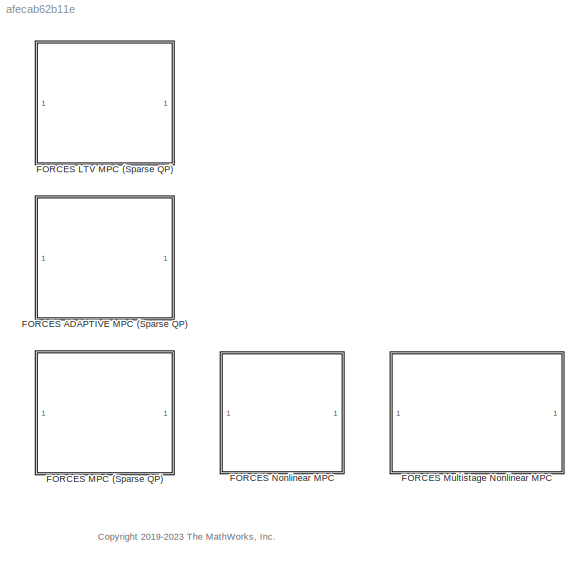
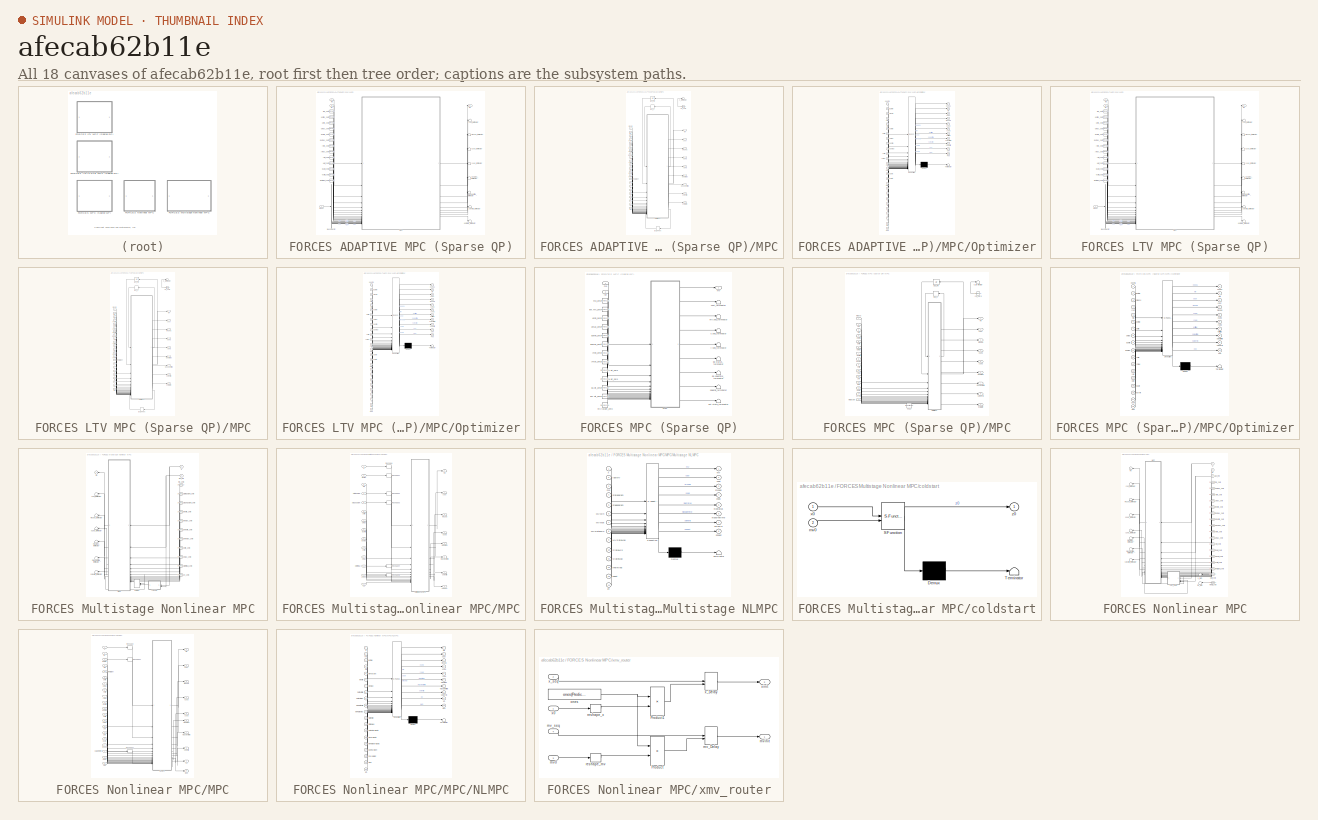
[diagram: thumbnail index - all 18 canvases of the model, root first then tree order]
MODEL slx_afecab62b11e
KIND library
CONFIG AbsTol = auto
CONFIG EnableMultiTasking = off
CONFIG FixedStep = auto
CONFIG MaxStep = auto
CONFIG MinStep = auto
CONFIG RelTol = 1e-3
CONFIG SampleTimeConstraint = Unconstrained
CONFIG SolverName = VariableStepAuto
CONFIG StartTime = 0.0
CONFIG StopTime = 10.0
BLOCK [SubSystem] FORCES ADAPTIVE MPC (Sparse QP)
  InitFcn = forcesmpcblock_InitFcn
BLOCK [BusSelector] FORCES ADAPTIVE MPC (Sparse QP)/Bus Selector
  OutputSignals = A,B,C,D,U,Y,X,DX
BLOCK [SubSystem] FORCES ADAPTIVE MPC (Sparse QP)/MPC
BLOCK [Inport] FORCES ADAPTIVE MPC (Sparse QP)/MPC/A
  Port = 16
BLOCK [Inport] FORCES ADAPTIVE MPC (Sparse QP)/MPC/B
  Port = 17
BLOCK [Inport] FORCES ADAPTIVE MPC (Sparse QP)/MPC/C
  Port = 18
BLOCK [Inport] FORCES ADAPTIVE MPC (Sparse QP)/MPC/D
  Port = 19
BLOCK [Inport] FORCES ADAPTIVE MPC (Sparse QP)/MPC/DX
  Port = 23
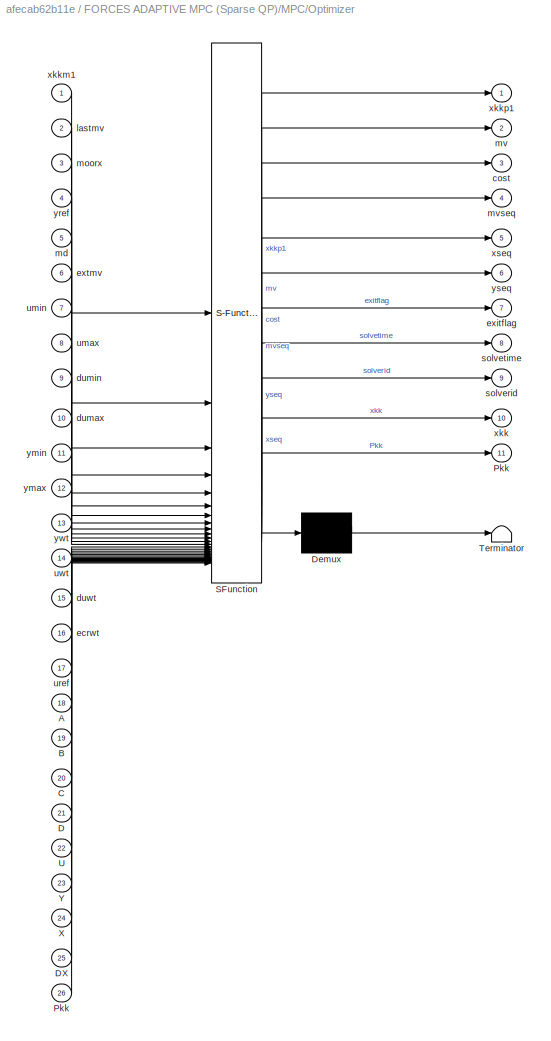
BLOCK [SubSystem] FORCES ADAPTIVE MPC (Sparse QP)/MPC/Optimizer
  ErrorFcn = Stateflow.Translate.translate
  PermitHierarchicalResolution = ExplicitOnly
  SFBlockType = MATLAB Function
  TreatAsAtomicUnit = on
BLOCK [Demux] FORCES ADAPTIVE MPC (Sparse QP)/MPC/Optimizer/ Demux 
  Outputs = 1
BLOCK [S-Function] FORCES ADAPTIVE MPC (Sparse QP)/MPC/Optimizer/ SFunction 
  EnableBusSupport = off
  FunctionName = sf_sfun
  Parameters = MPCstruct
  PortCounts = [26 12]
  SFcnIsStateOwnerBlock = off
  SFunctionDeploymentMode = off
  Tag = Stateflow S-Function 4
BLOCK [Terminator] FORCES ADAPTIVE MPC (Sparse QP)/MPC/Optimizer/ Terminator 
BLOCK [Inport] FORCES ADAPTIVE MPC (Sparse QP)/MPC/Optimizer/A
  Port = 18
BLOCK [Inport] FORCES ADAPTIVE MPC (Sparse QP)/MPC/Optimizer/B
  Port = 19
BLOCK [Inport] FORCES ADAPTIVE MPC (Sparse QP)/MPC/Optimizer/C
  Port = 20
BLOCK [Inport] FORCES ADAPTIVE MPC (Sparse QP)/MPC/Optimizer/D
  Port = 21
BLOCK [Inport] FORCES ADAPTIVE MPC (Sparse QP)/MPC/Optimizer/DX
  Port = 25
BLOCK [Outport] FORCES ADAPTIVE MPC (Sparse QP)/MPC/Optimizer/Pkk
  Port = 11
BLOCK [Inport] FORCES ADAPTIVE MPC (Sparse QP)/MPC/Optimizer/Pkk 
  Port = 26
BLOCK [Inport] FORCES ADAPTIVE MPC (Sparse QP)/MPC/Optimizer/U
  Port = 22
BLOCK [Inport] FORCES ADAPTIVE MPC (Sparse QP)/MPC/Optimizer/X
  Port = 24
BLOCK [Inport] FORCES ADAPTIVE MPC (Sparse QP)/MPC/Optimizer/Y
  Port = 23
BLOCK [Outport] FORCES ADAPTIVE MPC (Sparse QP)/MPC/Optimizer/cost
  Port = 3
BLOCK [Inport] FORCES ADAPTIVE MPC (Sparse QP)/MPC/Optimizer/dumax
  Port = 10
BLOCK [Inport] FORCES ADAPTIVE MPC (Sparse QP)/MPC/Optimizer/dumin
  Port = 9
BLOCK [Inport] FORCES ADAPTIVE MPC (Sparse QP)/MPC/Optimizer/duwt
  Port = 15
BLOCK [Inport] FORCES ADAPTIVE MPC (Sparse QP)/MPC/Optimizer/ecrwt
  Port = 16
BLOCK [Outport] FORCES ADAPTIVE MPC (Sparse QP)/MPC/Optimizer/exitflag
  Port = 7
BLOCK [Inport] FORCES ADAPTIVE MPC (Sparse QP)/MPC/Optimizer/extmv
  Port = 6
BLOCK [Inport] FORCES ADAPTIVE MPC (Sparse QP)/MPC/Optimizer/lastmv
  Port = 2
BLOCK [Inport] FORCES ADAPTIVE MPC (Sparse QP)/MPC/Optimizer/md
  Port = 5
BLOCK [Inport] FORCES ADAPTIVE MPC (Sparse QP)/MPC/Optimizer/moorx
  Port = 3
BLOCK [Outport] FORCES ADAPTIVE MPC (Sparse QP)/MPC/Optimizer/mv
  Port = 2
BLOCK [Outport] FORCES ADAPTIVE MPC (Sparse QP)/MPC/Optimizer/mvseq
  Port = 4
BLOCK [Outport] FORCES ADAPTIVE MPC (Sparse QP)/MPC/Optimizer/solverid
  Port = 9
BLOCK [Outport] FORCES ADAPTIVE MPC (Sparse QP)/MPC/Optimizer/solvetime
  Port = 8
BLOCK [Inport] FORCES ADAPTIVE MPC (Sparse QP)/MPC/Optimizer/umax
  Port = 8
BLOCK [Inport] FORCES ADAPTIVE MPC (Sparse QP)/MPC/Optimizer/umin
  Port = 7
BLOCK [Inport] FORCES ADAPTIVE MPC (Sparse QP)/MPC/Optimizer/uref
  Port = 17
BLOCK [Inport] FORCES ADAPTIVE MPC (Sparse QP)/MPC/Optimizer/uwt
  Port = 14
BLOCK [Outport] FORCES ADAPTIVE MPC (Sparse QP)/MPC/Optimizer/xkk
  Port = 10
BLOCK [Inport] FORCES ADAPTIVE MPC (Sparse QP)/MPC/Optimizer/xkkm1
BLOCK [Outport] FORCES ADAPTIVE MPC (Sparse QP)/MPC/Optimizer/xkkp1
BLOCK [Outport] FORCES ADAPTIVE MPC (Sparse QP)/MPC/Optimizer/xseq
  Port = 5
BLOCK [Inport] FORCES ADAPTIVE MPC (Sparse QP)/MPC/Optimizer/ymax
  Port = 12
BLOCK [Inport] FORCES ADAPTIVE MPC (Sparse QP)/MPC/Optimizer/ymin
  Port = 11
BLOCK [Inport] FORCES ADAPTIVE MPC (Sparse QP)/MPC/Optimizer/yref
  Port = 4
BLOCK [Outport] FORCES ADAPTIVE MPC (Sparse QP)/MPC/Optimizer/yseq
  Port = 6
BLOCK [Inport] FORCES ADAPTIVE MPC (Sparse QP)/MPC/Optimizer/ywt
  Port = 13
BLOCK [Inport] FORCES ADAPTIVE MPC (Sparse QP)/MPC/U
  Port = 20
BLOCK [Inport] FORCES ADAPTIVE MPC (Sparse QP)/MPC/X
  Port = 22
BLOCK [Inport] FORCES ADAPTIVE MPC (Sparse QP)/MPC/Y
  Port = 21
BLOCK [Outport] FORCES ADAPTIVE MPC (Sparse QP)/MPC/cost
  Port = 2
BLOCK [Inport] FORCES ADAPTIVE MPC (Sparse QP)/MPC/dumax
  Port = 8
BLOCK [Inport] FORCES ADAPTIVE MPC (Sparse QP)/MPC/dumin
  Port = 7
BLOCK [Inport] FORCES ADAPTIVE MPC (Sparse QP)/MPC/duwt
  Port = 13
BLOCK [Inport] FORCES ADAPTIVE MPC (Sparse QP)/MPC/ecrwt
  Port = 14
BLOCK [Outport] FORCES ADAPTIVE MPC (Sparse QP)/MPC/est.state
  Port = 9
BLOCK [Inport] FORCES ADAPTIVE MPC (Sparse QP)/MPC/ext.mv
  Port = 4
BLOCK [Memory] FORCES ADAPTIVE MPC (Sparse QP)/MPC/last_Pcov
  InheritSampleTime = on
  InitialCondition = MPCstruct.P0
  LinearizeAsDelay = on
BLOCK [UnitDelay] FORCES ADAPTIVE MPC (Sparse QP)/MPC/last_mv
  HasFrameUpgradeWarning = on
  InitialCondition = MPCstruct.MV0
  SampleTime = -1
BLOCK [Memory] FORCES ADAPTIVE MPC (Sparse QP)/MPC/last_x
  InheritSampleTime = on
  InitialCondition = MPCstruct.X0
  LinearizeAsDelay = on
BLOCK [Inport] FORCES ADAPTIVE MPC (Sparse QP)/MPC/md
  Port = 3
BLOCK [Inport] FORCES ADAPTIVE MPC (Sparse QP)/MPC/mo or x
BLOCK [Outport] FORCES ADAPTIVE MPC (Sparse QP)/MPC/mv
BLOCK [Outport] FORCES ADAPTIVE MPC (Sparse QP)/MPC/mv.seq
  Port = 3
BLOCK [Inport] FORCES ADAPTIVE MPC (Sparse QP)/MPC/mv.target
  Port = 15
BLOCK [Outport] FORCES ADAPTIVE MPC (Sparse QP)/MPC/qp.solvetime
  Port = 7
BLOCK [Outport] FORCES ADAPTIVE MPC (Sparse QP)/MPC/qp.status
  Port = 6
BLOCK [Inport] FORCES ADAPTIVE MPC (Sparse QP)/MPC/ref
  Port = 2
BLOCK [Outport] FORCES ADAPTIVE MPC (Sparse QP)/MPC/solverid
  Port = 8
BLOCK [Inport] FORCES ADAPTIVE MPC (Sparse QP)/MPC/umax
  Port = 6
BLOCK [Inport] FORCES ADAPTIVE MPC (Sparse QP)/MPC/umin
  Port = 5
BLOCK [Inport] FORCES ADAPTIVE MPC (Sparse QP)/MPC/uwt
  Port = 12
BLOCK [Outport] FORCES ADAPTIVE MPC (Sparse QP)/MPC/x.seq
  Port = 4
BLOCK [Terminator] FORCES ADAPTIVE MPC (Sparse QP)/MPC/x_terminator
BLOCK [Outport] FORCES ADAPTIVE MPC (Sparse QP)/MPC/y.seq
  Port = 5
BLOCK [Constant] FORCES ADAPTIVE MPC (Sparse QP)/MPC/ym_zero
  OutDataTypeStr = BlockDataType
  Value = zeros(1,1)
BLOCK [Inport] FORCES ADAPTIVE MPC (Sparse QP)/MPC/ymax
  Port = 10
BLOCK [Inport] FORCES ADAPTIVE MPC (Sparse QP)/MPC/ymin
  Port = 9
BLOCK [Inport] FORCES ADAPTIVE MPC (Sparse QP)/MPC/ywt
  Port = 11
BLOCK [Terminator] FORCES ADAPTIVE MPC (Sparse QP)/cost_terminator
BLOCK [Constant] FORCES ADAPTIVE MPC (Sparse QP)/du.wt_zero
  OutDataTypeStr = BlockDataType
  SampleTime = -1
  Value = zeros(1,1)
BLOCK [Constant] FORCES ADAPTIVE MPC (Sparse QP)/dumax_zero
  OutDataTypeStr = BlockDataType
  SampleTime = -1
  Value = zeros(1,1)
BLOCK [Constant] FORCES ADAPTIVE MPC (Sparse QP)/dumin_zero
  OutDataTypeStr = BlockDataType
  SampleTime = -1
  Value = zeros(1,1)
BLOCK [Constant] FORCES ADAPTIVE MPC (Sparse QP)/ecr.wt_zero
  OutDataTypeStr = BlockDataType
  SampleTime = -1
  Value = zeros(1,1)
BLOCK [Terminator] FORCES ADAPTIVE MPC (Sparse QP)/est.state_terminator
BLOCK [Constant] FORCES ADAPTIVE MPC (Sparse QP)/ext.mv_zero
  OutDataTypeStr = BlockDataType
  SampleTime = -1
  Value = zeros(1,1)
BLOCK [Constant] FORCES ADAPTIVE MPC (Sparse QP)/md_zero
  OutDataTypeStr = BlockDataType
  SampleTime = -1
  Value = zeros(1,1)
BLOCK [Inport] FORCES ADAPTIVE MPC (Sparse QP)/mo
  Port = 2
BLOCK [Inport] FORCES ADAPTIVE MPC (Sparse QP)/model
BLOCK [Outport] FORCES ADAPTIVE MPC (Sparse QP)/mv
BLOCK [Terminator] FORCES ADAPTIVE MPC (Sparse QP)/mv.seq_terminator
BLOCK [Constant] FORCES ADAPTIVE MPC (Sparse QP)/mv.target_zero
  OutDataTypeStr = BlockDataType
  SampleTime = -1
  Value = zeros(1,1)
BLOCK [Terminator] FORCES ADAPTIVE MPC (Sparse QP)/qp.solvetime_terminator
BLOCK [Terminator] FORCES ADAPTIVE MPC (Sparse QP)/qp.status_terminator
BLOCK [Inport] FORCES ADAPTIVE MPC (Sparse QP)/ref
  Port = 3
BLOCK [Terminator] FORCES ADAPTIVE MPC (Sparse QP)/solverid_terminator
BLOCK [Constant] FORCES ADAPTIVE MPC (Sparse QP)/u.wt_zero
  OutDataTypeStr = BlockDataType
  SampleTime = -1
  Value = zeros(1,1)
BLOCK [Constant] FORCES ADAPTIVE MPC (Sparse QP)/umax_zero
  OutDataTypeStr = BlockDataType
  SampleTime = -1
  Value = zeros(1,1)
BLOCK [Constant] FORCES ADAPTIVE MPC (Sparse QP)/umin_zero
  OutDataTypeStr = BlockDataType
  SampleTime = -1
  Value = zeros(1,1)
BLOCK [Terminator] FORCES ADAPTIVE MPC (Sparse QP)/x.seq_terminator
BLOCK [Terminator] FORCES ADAPTIVE MPC (Sparse QP)/y.seq_terminator
BLOCK [Constant] FORCES ADAPTIVE MPC (Sparse QP)/y.wt_zero
  OutDataTypeStr = BlockDataType
  SampleTime = -1
  Value = zeros(1,1)
BLOCK [Constant] FORCES ADAPTIVE MPC (Sparse QP)/ymax_zero
  OutDataTypeStr = BlockDataType
  SampleTime = -1
  Value = zeros(1,1)
BLOCK [Constant] FORCES ADAPTIVE MPC (Sparse QP)/ymin_zero
  OutDataTypeStr = BlockDataType
  SampleTime = -1
  Value = zeros(1,1)
BLOCK [SubSystem] FORCES LTV MPC (Sparse QP)
  InitFcn = forcesmpcblock_InitFcn
BLOCK [BusSelector] FORCES LTV MPC (Sparse QP)/Bus Selector
  OutputSignals = A,B,C,D,U,Y,X,DX
BLOCK [SubSystem] FORCES LTV MPC (Sparse QP)/MPC
BLOCK [Inport] FORCES LTV MPC (Sparse QP)/MPC/A
  Port = 16
BLOCK [Inport] FORCES LTV MPC (Sparse QP)/MPC/B
  Port = 17
BLOCK [Inport] FORCES LTV MPC (Sparse QP)/MPC/C
  Port = 18
BLOCK [Inport] FORCES LTV MPC (Sparse QP)/MPC/D
  Port = 19
BLOCK [Inport] FORCES LTV MPC (Sparse QP)/MPC/DX
  Port = 23
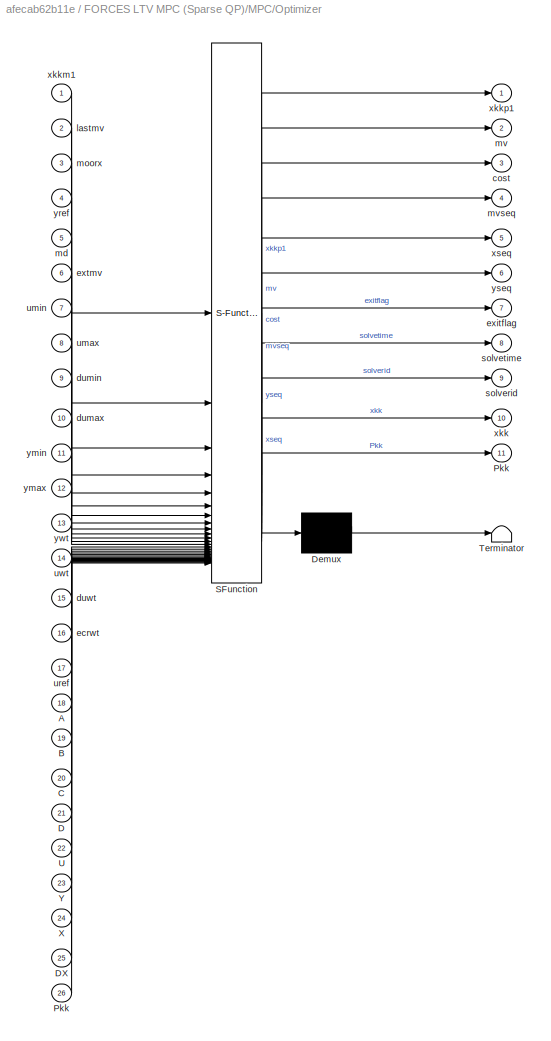
BLOCK [SubSystem] FORCES LTV MPC (Sparse QP)/MPC/Optimizer
  ErrorFcn = Stateflow.Translate.translate
  PermitHierarchicalResolution = ExplicitOnly
  SFBlockType = MATLAB Function
  TreatAsAtomicUnit = on
BLOCK [Demux] FORCES LTV MPC (Sparse QP)/MPC/Optimizer/ Demux 
  Outputs = 1
BLOCK [S-Function] FORCES LTV MPC (Sparse QP)/MPC/Optimizer/ SFunction 
  EnableBusSupport = off
  FunctionName = sf_sfun
  Parameters = MPCstruct
  PortCounts = [26 12]
  SFcnIsStateOwnerBlock = off
  SFunctionDeploymentMode = off
  Tag = Stateflow S-Function 5
BLOCK [Terminator] FORCES LTV MPC (Sparse QP)/MPC/Optimizer/ Terminator 
BLOCK [Inport] FORCES LTV MPC (Sparse QP)/MPC/Optimizer/A
  Port = 18
BLOCK [Inport] FORCES LTV MPC (Sparse QP)/MPC/Optimizer/B
  Port = 19
BLOCK [Inport] FORCES LTV MPC (Sparse QP)/MPC/Optimizer/C
  Port = 20
BLOCK [Inport] FORCES LTV MPC (Sparse QP)/MPC/Optimizer/D
  Port = 21
BLOCK [Inport] FORCES LTV MPC (Sparse QP)/MPC/Optimizer/DX
  Port = 25
BLOCK [Outport] FORCES LTV MPC (Sparse QP)/MPC/Optimizer/Pkk
  Port = 11
BLOCK [Inport] FORCES LTV MPC (Sparse QP)/MPC/Optimizer/Pkk 
  Port = 26
BLOCK [Inport] FORCES LTV MPC (Sparse QP)/MPC/Optimizer/U
  Port = 22
BLOCK [Inport] FORCES LTV MPC (Sparse QP)/MPC/Optimizer/X
  Port = 24
BLOCK [Inport] FORCES LTV MPC (Sparse QP)/MPC/Optimizer/Y
  Port = 23
BLOCK [Outport] FORCES LTV MPC (Sparse QP)/MPC/Optimizer/cost
  Port = 3
BLOCK [Inport] FORCES LTV MPC (Sparse QP)/MPC/Optimizer/dumax
  Port = 10
BLOCK [Inport] FORCES LTV MPC (Sparse QP)/MPC/Optimizer/dumin
  Port = 9
BLOCK [Inport] FORCES LTV MPC (Sparse QP)/MPC/Optimizer/duwt
  Port = 15
BLOCK [Inport] FORCES LTV MPC (Sparse QP)/MPC/Optimizer/ecrwt
  Port = 16
BLOCK [Outport] FORCES LTV MPC (Sparse QP)/MPC/Optimizer/exitflag
  Port = 7
BLOCK [Inport] FORCES LTV MPC (Sparse QP)/MPC/Optimizer/extmv
  Port = 6
BLOCK [Inport] FORCES LTV MPC (Sparse QP)/MPC/Optimizer/lastmv
  Port = 2
BLOCK [Inport] FORCES LTV MPC (Sparse QP)/MPC/Optimizer/md
  Port = 5
BLOCK [Inport] FORCES LTV MPC (Sparse QP)/MPC/Optimizer/moorx
  Port = 3
BLOCK [Outport] FORCES LTV MPC (Sparse QP)/MPC/Optimizer/mv
  Port = 2
BLOCK [Outport] FORCES LTV MPC (Sparse QP)/MPC/Optimizer/mvseq
  Port = 4
BLOCK [Outport] FORCES LTV MPC (Sparse QP)/MPC/Optimizer/solverid
  Port = 9
BLOCK [Outport] FORCES LTV MPC (Sparse QP)/MPC/Optimizer/solvetime
  Port = 8
BLOCK [Inport] FORCES LTV MPC (Sparse QP)/MPC/Optimizer/umax
  Port = 8
BLOCK [Inport] FORCES LTV MPC (Sparse QP)/MPC/Optimizer/umin
  Port = 7
BLOCK [Inport] FORCES LTV MPC (Sparse QP)/MPC/Optimizer/uref
  Port = 17
BLOCK [Inport] FORCES LTV MPC (Sparse QP)/MPC/Optimizer/uwt
  Port = 14
BLOCK [Outport] FORCES LTV MPC (Sparse QP)/MPC/Optimizer/xkk
  Port = 10
BLOCK [Inport] FORCES LTV MPC (Sparse QP)/MPC/Optimizer/xkkm1
BLOCK [Outport] FORCES LTV MPC (Sparse QP)/MPC/Optimizer/xkkp1
BLOCK [Outport] FORCES LTV MPC (Sparse QP)/MPC/Optimizer/xseq
  Port = 5
BLOCK [Inport] FORCES LTV MPC (Sparse QP)/MPC/Optimizer/ymax
  Port = 12
BLOCK [Inport] FORCES LTV MPC (Sparse QP)/MPC/Optimizer/ymin
  Port = 11
BLOCK [Inport] FORCES LTV MPC (Sparse QP)/MPC/Optimizer/yref
  Port = 4
BLOCK [Outport] FORCES LTV MPC (Sparse QP)/MPC/Optimizer/yseq
  Port = 6
BLOCK [Inport] FORCES LTV MPC (Sparse QP)/MPC/Optimizer/ywt
  Port = 13
BLOCK [Inport] FORCES LTV MPC (Sparse QP)/MPC/U
  Port = 20
BLOCK [Inport] FORCES LTV MPC (Sparse QP)/MPC/X
  Port = 22
BLOCK [Inport] FORCES LTV MPC (Sparse QP)/MPC/Y
  Port = 21
BLOCK [Outport] FORCES LTV MPC (Sparse QP)/MPC/cost
  Port = 2
BLOCK [Inport] FORCES LTV MPC (Sparse QP)/MPC/dumax
  Port = 8
BLOCK [Inport] FORCES LTV MPC (Sparse QP)/MPC/dumin
  Port = 7
BLOCK [Inport] FORCES LTV MPC (Sparse QP)/MPC/duwt
  Port = 13
BLOCK [Inport] FORCES LTV MPC (Sparse QP)/MPC/ecrwt
  Port = 14
BLOCK [Outport] FORCES LTV MPC (Sparse QP)/MPC/est.state
  Port = 9
BLOCK [Inport] FORCES LTV MPC (Sparse QP)/MPC/ext.mv
  Port = 4
BLOCK [Memory] FORCES LTV MPC (Sparse QP)/MPC/last_Pcov
  InheritSampleTime = on
  InitialCondition = MPCstruct.P0
  LinearizeAsDelay = on
BLOCK [UnitDelay] FORCES LTV MPC (Sparse QP)/MPC/last_mv
  HasFrameUpgradeWarning = on
  InitialCondition = MPCstruct.MV0
  SampleTime = -1
BLOCK [Memory] FORCES LTV MPC (Sparse QP)/MPC/last_x
  InheritSampleTime = on
  InitialCondition = MPCstruct.X0
  LinearizeAsDelay = on
BLOCK [Inport] FORCES LTV MPC (Sparse QP)/MPC/md
  Port = 3
BLOCK [Inport] FORCES LTV MPC (Sparse QP)/MPC/mo or x
BLOCK [Outport] FORCES LTV MPC (Sparse QP)/MPC/mv
BLOCK [Outport] FORCES LTV MPC (Sparse QP)/MPC/mv.seq
  Port = 3
BLOCK [Inport] FORCES LTV MPC (Sparse QP)/MPC/mv.target
  Port = 15
BLOCK [Outport] FORCES LTV MPC (Sparse QP)/MPC/qp.solvetime
  Port = 7
BLOCK [Outport] FORCES LTV MPC (Sparse QP)/MPC/qp.status
  Port = 6
BLOCK [Inport] FORCES LTV MPC (Sparse QP)/MPC/ref
  Port = 2
BLOCK [Outport] FORCES LTV MPC (Sparse QP)/MPC/solverid
  Port = 8
BLOCK [Inport] FORCES LTV MPC (Sparse QP)/MPC/umax
  Port = 6
BLOCK [Inport] FORCES LTV MPC (Sparse QP)/MPC/umin
  Port = 5
BLOCK [Inport] FORCES LTV MPC (Sparse QP)/MPC/uwt
  Port = 12
BLOCK [Outport] FORCES LTV MPC (Sparse QP)/MPC/x.seq
  Port = 4
BLOCK [Terminator] FORCES LTV MPC (Sparse QP)/MPC/x_terminator
BLOCK [Outport] FORCES LTV MPC (Sparse QP)/MPC/y.seq
  Port = 5
BLOCK [Constant] FORCES LTV MPC (Sparse QP)/MPC/ym_zero
  OutDataTypeStr = BlockDataType
  Value = zeros(1,1)
BLOCK [Inport] FORCES LTV MPC (Sparse QP)/MPC/ymax
  Port = 10
BLOCK [Inport] FORCES LTV MPC (Sparse QP)/MPC/ymin
  Port = 9
BLOCK [Inport] FORCES LTV MPC (Sparse QP)/MPC/ywt
  Port = 11
BLOCK [Terminator] FORCES LTV MPC (Sparse QP)/cost_terminator
BLOCK [Constant] FORCES LTV MPC (Sparse QP)/du.wt_zero
  OutDataTypeStr = BlockDataType
  SampleTime = -1
  Value = zeros(1,1)
BLOCK [Constant] FORCES LTV MPC (Sparse QP)/dumax_zero
  OutDataTypeStr = BlockDataType
  SampleTime = -1
  Value = zeros(1,1)
BLOCK [Constant] FORCES LTV MPC (Sparse QP)/dumin_zero
  OutDataTypeStr = BlockDataType
  SampleTime = -1
  Value = zeros(1,1)
BLOCK [Constant] FORCES LTV MPC (Sparse QP)/ecr.wt_zero
  OutDataTypeStr = BlockDataType
  SampleTime = -1
  Value = zeros(1,1)
BLOCK [Terminator] FORCES LTV MPC (Sparse QP)/est.state_terminator
BLOCK [Constant] FORCES LTV MPC (Sparse QP)/ext.mv_zero
  OutDataTypeStr = BlockDataType
  SampleTime = -1
  Value = zeros(1,1)
BLOCK [Constant] FORCES LTV MPC (Sparse QP)/md_zero
  OutDataTypeStr = BlockDataType
  SampleTime = -1
  Value = zeros(1,1)
BLOCK [Inport] FORCES LTV MPC (Sparse QP)/mo
  Port = 2
BLOCK [Inport] FORCES LTV MPC (Sparse QP)/model
BLOCK [Outport] FORCES LTV MPC (Sparse QP)/mv
BLOCK [Terminator] FORCES LTV MPC (Sparse QP)/mv.seq_terminator
BLOCK [Constant] FORCES LTV MPC (Sparse QP)/mv.target_zero
  OutDataTypeStr = BlockDataType
  SampleTime = -1
  Value = zeros(1,1)
BLOCK [Terminator] FORCES LTV MPC (Sparse QP)/qp.solvetime_terminator
BLOCK [Terminator] FORCES LTV MPC (Sparse QP)/qp.status_terminator
BLOCK [Inport] FORCES LTV MPC (Sparse QP)/ref
  Port = 3
BLOCK [Terminator] FORCES LTV MPC (Sparse QP)/solverid_terminator
BLOCK [Constant] FORCES LTV MPC (Sparse QP)/u.wt_zero
  OutDataTypeStr = BlockDataType
  SampleTime = -1
  Value = zeros(1,1)
BLOCK [Constant] FORCES LTV MPC (Sparse QP)/umax_zero
  OutDataTypeStr = BlockDataType
  SampleTime = -1
  Value = zeros(1,1)
BLOCK [Constant] FORCES LTV MPC (Sparse QP)/umin_zero
  OutDataTypeStr = BlockDataType
  SampleTime = -1
  Value = zeros(1,1)
BLOCK [Terminator] FORCES LTV MPC (Sparse QP)/x.seq_terminator
BLOCK [Terminator] FORCES LTV MPC (Sparse QP)/y.seq_terminator
BLOCK [Constant] FORCES LTV MPC (Sparse QP)/y.wt_zero
  OutDataTypeStr = BlockDataType
  SampleTime = -1
  Value = zeros(1,1)
BLOCK [Constant] FORCES LTV MPC (Sparse QP)/ymax_zero
  OutDataTypeStr = BlockDataType
  SampleTime = -1
  Value = zeros(1,1)
BLOCK [Constant] FORCES LTV MPC (Sparse QP)/ymin_zero
  OutDataTypeStr = BlockDataType
  SampleTime = -1
  Value = zeros(1,1)
BLOCK [SubSystem] FORCES MPC (Sparse QP)
  InitFcn = forcesmpcblock_InitFcn
BLOCK [SubSystem] FORCES MPC (Sparse QP)/MPC
BLOCK [SubSystem] FORCES MPC (Sparse QP)/MPC/Optimizer
  ErrorFcn = Stateflow.Translate.translate
  PermitHierarchicalResolution = ExplicitOnly
  SFBlockType = MATLAB Function
  TreatAsAtomicUnit = on
BLOCK [Demux] FORCES MPC (Sparse QP)/MPC/Optimizer/ Demux 
  Outputs = 1
BLOCK [S-Function] FORCES MPC (Sparse QP)/MPC/Optimizer/ SFunction 
  EnableBusSupport = off
  FunctionName = sf_sfun
  Parameters = MPCstruct
  PortCounts = [18 11]
  SFcnIsStateOwnerBlock = off
  SFunctionDeploymentMode = off
  Tag = Stateflow S-Function 2
BLOCK [Terminator] FORCES MPC (Sparse QP)/MPC/Optimizer/ Terminator 
BLOCK [Inport] FORCES MPC (Sparse QP)/MPC/Optimizer/Pkk
  Port = 18
BLOCK [Outport] FORCES MPC (Sparse QP)/MPC/Optimizer/cost
  Port = 3
BLOCK [Inport] FORCES MPC (Sparse QP)/MPC/Optimizer/dumax
  Port = 10
BLOCK [Inport] FORCES MPC (Sparse QP)/MPC/Optimizer/dumin
  Port = 9
BLOCK [Inport] FORCES MPC (Sparse QP)/MPC/Optimizer/duwt
  Port = 15
BLOCK [Inport] FORCES MPC (Sparse QP)/MPC/Optimizer/ecrwt
  Port = 16
BLOCK [Outport] FORCES MPC (Sparse QP)/MPC/Optimizer/exitflag
  Port = 7
BLOCK [Inport] FORCES MPC (Sparse QP)/MPC/Optimizer/extmv
  Port = 6
BLOCK [Inport] FORCES MPC (Sparse QP)/MPC/Optimizer/lastmv
  Port = 2
BLOCK [Inport] FORCES MPC (Sparse QP)/MPC/Optimizer/md
  Port = 5
BLOCK [Inport] FORCES MPC (Sparse QP)/MPC/Optimizer/moorx
  Port = 3
BLOCK [Outport] FORCES MPC (Sparse QP)/MPC/Optimizer/mv
  Port = 2
BLOCK [Outport] FORCES MPC (Sparse QP)/MPC/Optimizer/mvseq
  Port = 4
BLOCK [Outport] FORCES MPC (Sparse QP)/MPC/Optimizer/solverid
  Port = 9
BLOCK [Outport] FORCES MPC (Sparse QP)/MPC/Optimizer/solvetime
  Port = 8
BLOCK [Inport] FORCES MPC (Sparse QP)/MPC/Optimizer/umax
  Port = 8
BLOCK [Inport] FORCES MPC (Sparse QP)/MPC/Optimizer/umin
  Port = 7
BLOCK [Inport] FORCES MPC (Sparse QP)/MPC/Optimizer/uref
  Port = 17
BLOCK [Inport] FORCES MPC (Sparse QP)/MPC/Optimizer/uwt
  Port = 14
BLOCK [Outport] FORCES MPC (Sparse QP)/MPC/Optimizer/xkk
  Port = 10
BLOCK [Inport] FORCES MPC (Sparse QP)/MPC/Optimizer/xkkm1
BLOCK [Outport] FORCES MPC (Sparse QP)/MPC/Optimizer/xkkp1
BLOCK [Outport] FORCES MPC (Sparse QP)/MPC/Optimizer/xseq
  Port = 5
BLOCK [Inport] FORCES MPC (Sparse QP)/MPC/Optimizer/ymax
  Port = 12
BLOCK [Inport] FORCES MPC (Sparse QP)/MPC/Optimizer/ymin
  Port = 11
BLOCK [Inport] FORCES MPC (Sparse QP)/MPC/Optimizer/yref
  Port = 4
BLOCK [Outport] FORCES MPC (Sparse QP)/MPC/Optimizer/yseq
  Port = 6
BLOCK [Inport] FORCES MPC (Sparse QP)/MPC/Optimizer/ywt
  Port = 13
BLOCK [Constant] FORCES MPC (Sparse QP)/MPC/Pcov
  Value = MPCstruct.P0
BLOCK [Outport] FORCES MPC (Sparse QP)/MPC/cost
  Port = 2
BLOCK [Inport] FORCES MPC (Sparse QP)/MPC/dumax
  Port = 8
BLOCK [Inport] FORCES MPC (Sparse QP)/MPC/dumin
  Port = 7
BLOCK [Inport] FORCES MPC (Sparse QP)/MPC/duwt
  Port = 13
BLOCK [Inport] FORCES MPC (Sparse QP)/MPC/ecrwt
  Port = 14
BLOCK [Outport] FORCES MPC (Sparse QP)/MPC/est.state
  Port = 9
BLOCK [Inport] FORCES MPC (Sparse QP)/MPC/ext.mv
  Port = 4
BLOCK [UnitDelay] FORCES MPC (Sparse QP)/MPC/last_mv
  HasFrameUpgradeWarning = on
  InitialCondition = MPCstruct.MV0
  SampleTime = -1
BLOCK [Memory] FORCES MPC (Sparse QP)/MPC/last_x
  InheritSampleTime = on
  InitialCondition = MPCstruct.X0
  LinearizeAsDelay = on
BLOCK [Inport] FORCES MPC (Sparse QP)/MPC/md
  Port = 3
BLOCK [Inport] FORCES MPC (Sparse QP)/MPC/mo or x
BLOCK [Outport] FORCES MPC (Sparse QP)/MPC/mv
BLOCK [Outport] FORCES MPC (Sparse QP)/MPC/mv.seq
  Port = 3
BLOCK [Inport] FORCES MPC (Sparse QP)/MPC/mv.target
  Port = 15
BLOCK [Outport] FORCES MPC (Sparse QP)/MPC/qp.solvetime
  Port = 7
BLOCK [Outport] FORCES MPC (Sparse QP)/MPC/qp.status
  Port = 6
BLOCK [Inport] FORCES MPC (Sparse QP)/MPC/ref
  Port = 2
BLOCK [Outport] FORCES MPC (Sparse QP)/MPC/solverid
  Port = 8
BLOCK [Inport] FORCES MPC (Sparse QP)/MPC/umax
  Port = 6
BLOCK [Inport] FORCES MPC (Sparse QP)/MPC/umin
  Port = 5
BLOCK [Inport] FORCES MPC (Sparse QP)/MPC/uwt
  Port = 12
BLOCK [Outport] FORCES MPC (Sparse QP)/MPC/x.seq
  Port = 4
BLOCK [Terminator] FORCES MPC (Sparse QP)/MPC/x_terminator
BLOCK [Outport] FORCES MPC (Sparse QP)/MPC/y.seq
  Port = 5
BLOCK [Constant] FORCES MPC (Sparse QP)/MPC/ym_zero
  OutDataTypeStr = BlockDataType
  Value = zeros(1,1)
BLOCK [Inport] FORCES MPC (Sparse QP)/MPC/ymax
  Port = 10
BLOCK [Inport] FORCES MPC (Sparse QP)/MPC/ymin
  Port = 9
BLOCK [Inport] FORCES MPC (Sparse QP)/MPC/ywt
  Port = 11
BLOCK [Terminator] FORCES MPC (Sparse QP)/cost_terminator
BLOCK [Constant] FORCES MPC (Sparse QP)/du.wt_zero
  OutDataTypeStr = BlockDataType
  SampleTime = -1
  Value = zeros(1,1)
BLOCK [Constant] FORCES MPC (Sparse QP)/dumax_zero
  OutDataTypeStr = BlockDataType
  SampleTime = -1
  Value = zeros(1,1)
BLOCK [Constant] FORCES MPC (Sparse QP)/dumin_zero
  OutDataTypeStr = BlockDataType
  SampleTime = -1
  Value = zeros(1,1)
BLOCK [Constant] FORCES MPC (Sparse QP)/ecr.wt_zero
  OutDataTypeStr = BlockDataType
  SampleTime = -1
  Value = zeros(1,1)
BLOCK [Terminator] FORCES MPC (Sparse QP)/est.state_terminator
BLOCK [Constant] FORCES MPC (Sparse QP)/ext.mv_zero
  OutDataTypeStr = BlockDataType
  SampleTime = -1
  Value = zeros(1,1)
BLOCK [Constant] FORCES MPC (Sparse QP)/md_zero
  OutDataTypeStr = BlockDataType
  SampleTime = -1
  Value = zeros(1,1)
BLOCK [Inport] FORCES MPC (Sparse QP)/mo
BLOCK [Outport] FORCES MPC (Sparse QP)/mv
BLOCK [Terminator] FORCES MPC (Sparse QP)/mv.seq_terminator
BLOCK [Constant] FORCES MPC (Sparse QP)/mv.target_zero
  OutDataTypeStr = BlockDataType
  SampleTime = -1
  Value = zeros(1,1)
BLOCK [Terminator] FORCES MPC (Sparse QP)/qp.solvetime_terminator
BLOCK [Terminator] FORCES MPC (Sparse QP)/qp.status_terminator
BLOCK [Inport] FORCES MPC (Sparse QP)/ref
  Port = 2
BLOCK [Terminator] FORCES MPC (Sparse QP)/solverid_terminator
BLOCK [Constant] FORCES MPC (Sparse QP)/u.wt_zero
  OutDataTypeStr = BlockDataType
  SampleTime = -1
  Value = zeros(1,1)
BLOCK [Constant] FORCES MPC (Sparse QP)/umax_zero
  OutDataTypeStr = BlockDataType
  SampleTime = -1
  Value = zeros(1,1)
BLOCK [Constant] FORCES MPC (Sparse QP)/umin_zero
  OutDataTypeStr = BlockDataType
  SampleTime = -1
  Value = zeros(1,1)
BLOCK [Terminator] FORCES MPC (Sparse QP)/x.seq_terminator
BLOCK [Terminator] FORCES MPC (Sparse QP)/y.seq_terminator
BLOCK [Constant] FORCES MPC (Sparse QP)/y.wt_zero
  OutDataTypeStr = BlockDataType
  SampleTime = -1
  Value = zeros(1,1)
BLOCK [Constant] FORCES MPC (Sparse QP)/ymax_zero
  OutDataTypeStr = BlockDataType
  SampleTime = -1
  Value = zeros(1,1)
BLOCK [Constant] FORCES MPC (Sparse QP)/ymin_zero
  OutDataTypeStr = BlockDataType
  SampleTime = -1
  Value = zeros(1,1)
BLOCK [SubSystem] FORCES Multistage Nonlinear MPC
  InitFcn = forcesnlmpcblockMultistage_InitFcn;
  SCDEnableBlockLinearizationSpecification = on
BLOCK [SubSystem] FORCES Multistage Nonlinear MPC/MPC
BLOCK [SubSystem] FORCES Multistage Nonlinear MPC/MPC/Multistage NLMPC
  ErrorFcn = Stateflow.Translate.translate
  PermitHierarchicalResolution = ExplicitOnly
  SFBlockType = MATLAB Function
  TreatAsAtomicUnit = on
BLOCK [Demux] FORCES Multistage Nonlinear MPC/MPC/Multistage NLMPC/ Demux 
  Outputs = 1
BLOCK [S-Function] FORCES Multistage Nonlinear MPC/MPC/Multistage NLMPC/ SFunction 
  EnableBusSupport = off
  FunctionName = sf_sfun
  Parameters = blkData
  PortCounts = [14 9]
  SFcnIsStateOwnerBlock = off
  SFunctionDeploymentMode = off
  Tag = Stateflow S-Function 1
BLOCK [Terminator] FORCES Multistage Nonlinear MPC/MPC/Multistage NLMPC/ Terminator 
BLOCK [Inport] FORCES Multistage Nonlinear MPC/MPC/Multistage NLMPC/MVMax
  Port = 7
BLOCK [Inport] FORCES Multistage Nonlinear MPC/MPC/Multistage NLMPC/MVMin
  Port = 6
BLOCK [Inport] FORCES Multistage Nonlinear MPC/MPC/Multistage NLMPC/MVRateMax
  Port = 9
BLOCK [Inport] FORCES Multistage Nonlinear MPC/MPC/Multistage NLMPC/MVRateMin
  Port = 8
BLOCK [Inport] FORCES Multistage Nonlinear MPC/MPC/Multistage NLMPC/StateMax
  Port = 11
BLOCK [Inport] FORCES Multistage Nonlinear MPC/MPC/Multistage NLMPC/StateMin
  Port = 10
BLOCK [Outport] FORCES Multistage Nonlinear MPC/MPC/Multistage NLMPC/cost
  Port = 2
  VectorParamsAs1DForOutWhenUnconnected = off
BLOCK [Inport] FORCES Multistage Nonlinear MPC/MPC/Multistage NLMPC/lastMV
  Port = 2
BLOCK [Inport] FORCES Multistage Nonlinear MPC/MPC/Multistage NLMPC/md
  Port = 3
BLOCK [Outport] FORCES Multistage Nonlinear MPC/MPC/Multistage NLMPC/mv
  VectorParamsAs1DForOutWhenUnconnected = off
BLOCK [Outport] FORCES Multistage Nonlinear MPC/MPC/Multistage NLMPC/mvseq
  Port = 3
  VectorParamsAs1DForOutWhenUnconnected = off
BLOCK [Outport] FORCES Multistage Nonlinear MPC/MPC/Multistage NLMPC/nlpsolvetime
  Port = 6
BLOCK [Outport] FORCES Multistage Nonlinear MPC/MPC/Multistage NLMPC/nlpstatus
  Port = 5
  VectorParamsAs1DForOutWhenUnconnected = off
BLOCK [Outport] FORCES Multistage Nonlinear MPC/MPC/Multistage NLMPC/solverid
  Port = 7
BLOCK [Inport] FORCES Multistage Nonlinear MPC/MPC/Multistage NLMPC/stageparam
  Port = 5
BLOCK [Inport] FORCES Multistage Nonlinear MPC/MPC/Multistage NLMPC/stateparam
  Port = 4
BLOCK [Inport] FORCES Multistage Nonlinear MPC/MPC/Multistage NLMPC/x
BLOCK [Inport] FORCES Multistage Nonlinear MPC/MPC/Multistage NLMPC/xTerminal
  Port = 12
BLOCK [Outport] FORCES Multistage Nonlinear MPC/MPC/Multistage NLMPC/xseq
  Port = 4
  VectorParamsAs1DForOutWhenUnconnected = off
BLOCK [Inport] FORCES Multistage Nonlinear MPC/MPC/Multistage NLMPC/z0
  Port = 14
BLOCK [Inport] FORCES Multistage Nonlinear MPC/MPC/Multistage NLMPC/z0ext
  Port = 13
BLOCK [Outport] FORCES Multistage Nonlinear MPC/MPC/Multistage NLMPC/z0next
  Port = 8
  VectorParamsAs1DForOutWhenUnconnected = off
BLOCK [Reshape] FORCES Multistage Nonlinear MPC/MPC/Reshape
  OutputDimensionality = Column vector (2-D)
BLOCK [Reshape] FORCES Multistage Nonlinear MPC/MPC/Reshape1
  OutputDimensionality = Column vector (2-D)
BLOCK [Reshape] FORCES Multistage Nonlinear MPC/MPC/Reshape2
  OutputDimensionality = Column vector (2-D)
BLOCK [Reshape] FORCES Multistage Nonlinear MPC/MPC/Reshape3
  OutputDimensionality = Column vector (2-D)
BLOCK [Reshape] FORCES Multistage Nonlinear MPC/MPC/Reshape4
  OutputDimensionality = Column vector (2-D)
BLOCK [Reshape] FORCES Multistage Nonlinear MPC/MPC/Reshape6
  OutputDimensionality = Column vector (2-D)
BLOCK [Outport] FORCES Multistage Nonlinear MPC/MPC/cost
  Port = 2
  VectorParamsAs1DForOutWhenUnconnected = off
BLOCK [Inport] FORCES Multistage Nonlinear MPC/MPC/dumax
  Port = 9
BLOCK [Inport] FORCES Multistage Nonlinear MPC/MPC/dumin
  Port = 8
BLOCK [Inport] FORCES Multistage Nonlinear MPC/MPC/lastMV
  Port = 2
BLOCK [Inport] FORCES Multistage Nonlinear MPC/MPC/md
  Port = 3
BLOCK [Outport] FORCES Multistage Nonlinear MPC/MPC/mv
  VectorParamsAs1DForOutWhenUnconnected = off
BLOCK [Outport] FORCES Multistage Nonlinear MPC/MPC/mv.seq
  Port = 3
  VectorParamsAs1DForOutWhenUnconnected = off
BLOCK [Outport] FORCES Multistage Nonlinear MPC/MPC/nlp.solvetime
  Port = 6
  VectorParamsAs1DForOutWhenUnconnected = off
BLOCK [Outport] FORCES Multistage Nonlinear MPC/MPC/nlp.status
  Port = 5
  VectorParamsAs1DForOutWhenUnconnected = off
BLOCK [Outport] FORCES Multistage Nonlinear MPC/MPC/solverid
  Port = 7
  VectorParamsAs1DForOutWhenUnconnected = off
BLOCK [Inport] FORCES Multistage Nonlinear MPC/MPC/stageparam
  Port = 5
BLOCK [Inport] FORCES Multistage Nonlinear MPC/MPC/stateparam
  Port = 4
BLOCK [Inport] FORCES Multistage Nonlinear MPC/MPC/umax
  Port = 7
BLOCK [Inport] FORCES Multistage Nonlinear MPC/MPC/umin
  Port = 6
BLOCK [Inport] FORCES Multistage Nonlinear MPC/MPC/x
BLOCK [Outport] FORCES Multistage Nonlinear MPC/MPC/x.seq
  Port = 4
  VectorParamsAs1DForOutWhenUnconnected = off
BLOCK [Inport] FORCES Multistage Nonlinear MPC/MPC/xmax
  Port = 11
BLOCK [Inport] FORCES Multistage Nonlinear MPC/MPC/xmin
  Port = 10
BLOCK [Inport] FORCES Multistage Nonlinear MPC/MPC/xterminal
  Port = 12
BLOCK [Inport] FORCES Multistage Nonlinear MPC/MPC/z0
  Port = 14
BLOCK [Inport] FORCES Multistage Nonlinear MPC/MPC/z0ext
  Port = 13
BLOCK [Outport] FORCES Multistage Nonlinear MPC/MPC/z0next
  Port = 8
  VectorParamsAs1DForOutWhenUnconnected = off
BLOCK [SubSystem] FORCES Multistage Nonlinear MPC/coldstart
  ErrorFcn = Stateflow.Translate.translate
  PermitHierarchicalResolution = ExplicitOnly
  SFBlockType = MATLAB Function
  TreatAsAtomicUnit = on
BLOCK [Demux] FORCES Multistage Nonlinear MPC/coldstart/ Demux 
  Outputs = 1
BLOCK [S-Function] FORCES Multistage Nonlinear MPC/coldstart/ SFunction 
  EnableBusSupport = off
  FunctionName = sf_sfun
  Parameters = blkData
  PortCounts = [2 2]
  SFcnIsStateOwnerBlock = off
  SFunctionDeploymentMode = off
  Tag = Stateflow S-Function 3
BLOCK [Terminator] FORCES Multistage Nonlinear MPC/coldstart/ Terminator 
BLOCK [Inport] FORCES Multistage Nonlinear MPC/coldstart/mv0
  Port = 2
BLOCK [Inport] FORCES Multistage Nonlinear MPC/coldstart/x0
BLOCK [Outport] FORCES Multistage Nonlinear MPC/coldstart/z0
BLOCK [Terminator] FORCES Multistage Nonlinear MPC/cost_terminator
BLOCK [Constant] FORCES Multistage Nonlinear MPC/dmv.max_zero
  OutDataTypeStr = BlockDataType
  Value = zeros(1,1)
BLOCK [Constant] FORCES Multistage Nonlinear MPC/dmv.min_zero
  OutDataTypeStr = BlockDataType
  Value = zeros(1,1)
BLOCK [Inport] FORCES Multistage Nonlinear MPC/last_mv
  OutDataTypeStr = BlockDataType
  Port = 2
BLOCK [Constant] FORCES Multistage Nonlinear MPC/md_zero
  OutDataTypeStr = BlockDataType
  Value = zeros(1,1)
BLOCK [Outport] FORCES Multistage Nonlinear MPC/mv
  VectorParamsAs1DForOutWhenUnconnected = off
BLOCK [Constant] FORCES Multistage Nonlinear MPC/mv.max_zero
  OutDataTypeStr = BlockDataType
  Value = zeros(1,1)
BLOCK [Constant] FORCES Multistage Nonlinear MPC/mv.min_zero
  OutDataTypeStr = BlockDataType
  Value = zeros(1,1)
BLOCK [Terminator] FORCES Multistage Nonlinear MPC/mv.seq_terminator
BLOCK [Terminator] FORCES Multistage Nonlinear MPC/nlp.solvetime_terminator
BLOCK [Terminator] FORCES Multistage Nonlinear MPC/nlp.status_terminator
BLOCK [Terminator] FORCES Multistage Nonlinear MPC/solverid_terminator
BLOCK [Constant] FORCES Multistage Nonlinear MPC/stage.param_zero
  OutDataTypeStr = BlockDataType
  Value = zeros(1,1)
BLOCK [Constant] FORCES Multistage Nonlinear MPC/state.param_zero
  OutDataTypeStr = BlockDataType
  Value = zeros(1,1)
BLOCK [Inport] FORCES Multistage Nonlinear MPC/x
  OutDataTypeStr = BlockDataType
BLOCK [Constant] FORCES Multistage Nonlinear MPC/x.max_zero
  OutDataTypeStr = BlockDataType
  Value = zeros(1,1)
BLOCK [Constant] FORCES Multistage Nonlinear MPC/x.min_zero
  OutDataTypeStr = BlockDataType
  Value = zeros(1,1)
BLOCK [Terminator] FORCES Multistage Nonlinear MPC/x.seq_terminator
BLOCK [Constant] FORCES Multistage Nonlinear MPC/x.terminal_zero
  OutDataTypeStr = BlockDataType
  Value = zeros(1,1)
BLOCK [Constant] FORCES Multistage Nonlinear MPC/z0_zero
  OutDataTypeStr = BlockDataType
  Value = zeros(1,1)
BLOCK [Delay] FORCES Multistage Nonlinear MPC/zDelay
  DelayLength = 1
  InitialConditionSource = Input port
  InputPortMap = u0,p4
  SampleTime = blkData.Ts
BLOCK [SubSystem] FORCES Nonlinear MPC
  InitFcn = forcesnlmpcblock_InitFcn;
  SCDEnableBlockLinearizationSpecification = on
BLOCK [SubSystem] FORCES Nonlinear MPC/MPC
BLOCK [Outport] FORCES Nonlinear MPC/MPC/MV0
  Port = 10
  VectorParamsAs1DForOutWhenUnconnected = off
BLOCK [SubSystem] FORCES Nonlinear MPC/MPC/NLMPC
  ErrorFcn = Stateflow.Translate.translate
  PermitHierarchicalResolution = ExplicitOnly
  SFBlockType = MATLAB Function
  TreatAsAtomicUnit = on
BLOCK [Demux] FORCES Nonlinear MPC/MPC/NLMPC/ Demux 
  Outputs = 1
BLOCK [S-Function] FORCES Nonlinear MPC/MPC/NLMPC/ SFunction 
  EnableBusSupport = off
  FunctionName = sf_sfun
  Parameters = blkData
  PortCounts = [20 11]
  SFcnIsStateOwnerBlock = off
  SFunctionDeploymentMode = off
  Tag = Stateflow S-Function 7
BLOCK [Terminator] FORCES Nonlinear MPC/MPC/NLMPC/ Terminator 
BLOCK [Inport] FORCES Nonlinear MPC/MPC/NLMPC/ECRWeight
  Port = 17
BLOCK [Outport] FORCES Nonlinear MPC/MPC/NLMPC/MV0
  Port = 10
BLOCK [Inport] FORCES Nonlinear MPC/MPC/NLMPC/MV0 
  Port = 19
BLOCK [Inport] FORCES Nonlinear MPC/MPC/NLMPC/MVMax
  Port = 7
BLOCK [Inport] FORCES Nonlinear MPC/MPC/NLMPC/MVMin
  Port = 6
BLOCK [Inport] FORCES Nonlinear MPC/MPC/NLMPC/MVRateMax
  Port = 11
BLOCK [Inport] FORCES Nonlinear MPC/MPC/NLMPC/MVRateMin
  Port = 10
BLOCK [Inport] FORCES Nonlinear MPC/MPC/NLMPC/MVRateWeights
  Port = 16
BLOCK [Inport] FORCES Nonlinear MPC/MPC/NLMPC/MVTarget
  Port = 5
BLOCK [Inport] FORCES Nonlinear MPC/MPC/NLMPC/MVWeights
  Port = 15
BLOCK [Inport] FORCES Nonlinear MPC/MPC/NLMPC/OutputMax
  Port = 9
BLOCK [Inport] FORCES Nonlinear MPC/MPC/NLMPC/OutputMin
  Port = 8
BLOCK [Inport] FORCES Nonlinear MPC/MPC/NLMPC/OutputWeights
  Port = 14
BLOCK [Inport] FORCES Nonlinear MPC/MPC/NLMPC/Parameter
  Port = 18
BLOCK [Inport] FORCES Nonlinear MPC/MPC/NLMPC/StateMax
  Port = 13
BLOCK [Inport] FORCES Nonlinear MPC/MPC/NLMPC/StateMin
  Port = 12
BLOCK [Outport] FORCES Nonlinear MPC/MPC/NLMPC/X0
  Port = 9
BLOCK [Inport] FORCES Nonlinear MPC/MPC/NLMPC/X0 
  Port = 20
BLOCK [Outport] FORCES Nonlinear MPC/MPC/NLMPC/cost
  Port = 2
  VectorParamsAs1DForOutWhenUnconnected = off
BLOCK [Inport] FORCES Nonlinear MPC/MPC/NLMPC/lastMV
  Port = 3
BLOCK [Inport] FORCES Nonlinear MPC/MPC/NLMPC/md
  Port = 4
BLOCK [Outport] FORCES Nonlinear MPC/MPC/NLMPC/mv
  VectorParamsAs1DForOutWhenUnconnected = off
BLOCK [Outport] FORCES Nonlinear MPC/MPC/NLMPC/mvseq
  Port = 3
  VectorParamsAs1DForOutWhenUnconnected = off
BLOCK [Outport] FORCES Nonlinear MPC/MPC/NLMPC/nlpsolvetime
  Port = 7
BLOCK [Outport] FORCES Nonlinear MPC/MPC/NLMPC/nlpstatus
  Port = 6
  VectorParamsAs1DForOutWhenUnconnected = off
BLOCK [Inport] FORCES Nonlinear MPC/MPC/NLMPC/ref
  Port = 2
BLOCK [Outport] FORCES Nonlinear MPC/MPC/NLMPC/solverid
  Port = 8
BLOCK [Inport] FORCES Nonlinear MPC/MPC/NLMPC/x
BLOCK [Outport] FORCES Nonlinear MPC/MPC/NLMPC/xseq
  Port = 4
  VectorParamsAs1DForOutWhenUnconnected = off
BLOCK [Outport] FORCES Nonlinear MPC/MPC/NLMPC/yseq
  Port = 5
  VectorParamsAs1DForOutWhenUnconnected = off
BLOCK [Reshape] FORCES Nonlinear MPC/MPC/Reshape
  OutputDimensionality = Column vector (2-D)
BLOCK [Reshape] FORCES Nonlinear MPC/MPC/Reshape1
  OutputDimensionality = Column vector (2-D)
BLOCK [Reshape] FORCES Nonlinear MPC/MPC/Reshape2
  OutputDimensionality = Column vector (2-D)
BLOCK [Outport] FORCES Nonlinear MPC/MPC/X0
  Port = 9
  VectorParamsAs1DForOutWhenUnconnected = off
BLOCK [Outport] FORCES Nonlinear MPC/MPC/cost
  Port = 2
  VectorParamsAs1DForOutWhenUnconnected = off
BLOCK [Inport] FORCES Nonlinear MPC/MPC/dumax
  Port = 11
BLOCK [Inport] FORCES Nonlinear MPC/MPC/dumin
  Port = 10
BLOCK [Inport] FORCES Nonlinear MPC/MPC/duwt
  Port = 16
BLOCK [Inport] FORCES Nonlinear MPC/MPC/lastMV
  Port = 3
BLOCK [Inport] FORCES Nonlinear MPC/MPC/md
  Port = 4
BLOCK [Outport] FORCES Nonlinear MPC/MPC/mv
  VectorParamsAs1DForOutWhenUnconnected = off
BLOCK [Outport] FORCES Nonlinear MPC/MPC/mv.seq
  Port = 3
  VectorParamsAs1DForOutWhenUnconnected = off
BLOCK [Inport] FORCES Nonlinear MPC/MPC/mv.target
  Port = 18
BLOCK [Inport] FORCES Nonlinear MPC/MPC/mvinit
  Port = 19
BLOCK [Outport] FORCES Nonlinear MPC/MPC/nlp.solvetime
  Port = 7
  VectorParamsAs1DForOutWhenUnconnected = off
BLOCK [Outport] FORCES Nonlinear MPC/MPC/nlp.status
  Port = 6
  VectorParamsAs1DForOutWhenUnconnected = off
BLOCK [Inport] FORCES Nonlinear MPC/MPC/parameters
  Port = 5
BLOCK [Inport] FORCES Nonlinear MPC/MPC/ref
  Port = 2
BLOCK [Inport] FORCES Nonlinear MPC/MPC/rhoeps
  Port = 17
BLOCK [Outport] FORCES Nonlinear MPC/MPC/solverid
  Port = 8
  VectorParamsAs1DForOutWhenUnconnected = off
BLOCK [Inport] FORCES Nonlinear MPC/MPC/umax
  Port = 9
BLOCK [Inport] FORCES Nonlinear MPC/MPC/umin
  Port = 8
BLOCK [Inport] FORCES Nonlinear MPC/MPC/uwt
  Port = 15
BLOCK [Inport] FORCES Nonlinear MPC/MPC/x
BLOCK [Outport] FORCES Nonlinear MPC/MPC/x.seq
  Port = 4
  VectorParamsAs1DForOutWhenUnconnected = off
BLOCK [Inport] FORCES Nonlinear MPC/MPC/xinit
  Port = 20
BLOCK [Inport] FORCES Nonlinear MPC/MPC/xmax
  Port = 13
BLOCK [Inport] FORCES Nonlinear MPC/MPC/xmin
  Port = 12
BLOCK [Outport] FORCES Nonlinear MPC/MPC/y.seq
  NameLocation = top
  Port = 5
  VectorParamsAs1DForOutWhenUnconnected = off
BLOCK [Inport] FORCES Nonlinear MPC/MPC/ymax
  Port = 7
BLOCK [Inport] FORCES Nonlinear MPC/MPC/ymin
  Port = 6
BLOCK [Inport] FORCES Nonlinear MPC/MPC/ywt
  Port = 14
BLOCK [Terminator] FORCES Nonlinear MPC/cost_terminator
BLOCK [Constant] FORCES Nonlinear MPC/dmv.max_zero
  Value = zeros(1,1)
BLOCK [Constant] FORCES Nonlinear MPC/dmv.min_zero
  Value = zeros(1,1)
BLOCK [Constant] FORCES Nonlinear MPC/dmv.wt_zero
  Value = zeros(1,1)
BLOCK [Constant] FORCES Nonlinear MPC/ecr.wt_zero
  Value = zeros(1,1)
BLOCK [Inport] FORCES Nonlinear MPC/last_mv
  Port = 3
BLOCK [Constant] FORCES Nonlinear MPC/md_zero
  OutDataTypeStr = BlockDataType
  Value = zeros(1,1)
BLOCK [Outport] FORCES Nonlinear MPC/mv
  VectorParamsAs1DForOutWhenUnconnected = off
BLOCK [Constant] FORCES Nonlinear MPC/mv.init_zero
  OutDataTypeStr = BlockDataType
  Value = zeros(1,1)
BLOCK [Constant] FORCES Nonlinear MPC/mv.max_zero
  Value = zeros(1,1)
BLOCK [Constant] FORCES Nonlinear MPC/mv.min_zero
  Value = zeros(1,1)
BLOCK [Terminator] FORCES Nonlinear MPC/mv.seq_terminator
BLOCK [Constant] FORCES Nonlinear MPC/mv.target_zero
  OutDataTypeStr = BlockDataType
  Value = zeros(1,1)
BLOCK [Constant] FORCES Nonlinear MPC/mv.wt_zero
  Value = zeros(1,1)
BLOCK [Terminator] FORCES Nonlinear MPC/mv_term
BLOCK [Terminator] FORCES Nonlinear MPC/nlp.solvetime_terminator
BLOCK [Terminator] FORCES Nonlinear MPC/nlp.status_terminator
BLOCK [Constant] FORCES Nonlinear MPC/params_zero
  OutDataTypeStr = BlockDataType
  Value = zeros(1,1)
BLOCK [Inport] FORCES Nonlinear MPC/ref
  Port = 2
BLOCK [Terminator] FORCES Nonlinear MPC/solverid_terminator
BLOCK [Inport] FORCES Nonlinear MPC/x
BLOCK [Constant] FORCES Nonlinear MPC/x.init_zero
  OutDataTypeStr = BlockDataType
  Value = zeros(1,1)
BLOCK [Constant] FORCES Nonlinear MPC/x.max_zero
  Value = zeros(1,1)
BLOCK [Constant] FORCES Nonlinear MPC/x.min_zero
  Value = zeros(1,1)
BLOCK [Terminator] FORCES Nonlinear MPC/x.seq_terminator
BLOCK [Terminator] FORCES Nonlinear MPC/x_term
BLOCK [SubSystem] FORCES Nonlinear MPC/xmv_router
BLOCK [Product] FORCES Nonlinear MPC/xmv_router/Product
  Multiplication = Matrix(*)
BLOCK [Product] FORCES Nonlinear MPC/xmv_router/Product1
  Multiplication = Matrix(*)
BLOCK [Inport] FORCES Nonlinear MPC/xmv_router/mv0
  Port = 3
BLOCK [Delay] FORCES Nonlinear MPC/xmv_router/mv_Delay
  DelayLength = 1
  InitialConditionSource = Input port
  InputPortMap = u0,p4
  SampleTime = Ts
BLOCK [Inport] FORCES Nonlinear MPC/xmv_router/mv_seq
  Port = 4
BLOCK [Outport] FORCES Nonlinear MPC/xmv_router/mvinit
  VectorParamsAs1DForOutWhenUnconnected = off
BLOCK [Constant] FORCES Nonlinear MPC/xmv_router/ones
  Value = ones(PredictionHorizon,1)
  VectorParams1D = off
BLOCK [Reshape] FORCES Nonlinear MPC/xmv_router/reshape_mv
  OutputDimensionality = Row vector (2-D)
BLOCK [Reshape] FORCES Nonlinear MPC/xmv_router/reshape_x
  OutputDimensionality = Row vector (2-D)
BLOCK [Inport] FORCES Nonlinear MPC/xmv_router/x0
BLOCK [Delay] FORCES Nonlinear MPC/xmv_router/x_Delay
  DelayLength = 1
  InitialConditionSource = Input port
  InputPortMap = u0,p4
  SampleTime = Ts
BLOCK [Inport] FORCES Nonlinear MPC/xmv_router/x_seq
  Port = 2
BLOCK [Outport] FORCES Nonlinear MPC/xmv_router/xinit
  Port = 2
  VectorParamsAs1DForOutWhenUnconnected = off
BLOCK [Constant] FORCES Nonlinear MPC/y.max_zero
  Value = zeros(1,1)
BLOCK [Constant] FORCES Nonlinear MPC/y.min_zero
  Value = zeros(1,1)
BLOCK [Terminator] FORCES Nonlinear MPC/y.seq_terminator
BLOCK [Constant] FORCES Nonlinear MPC/y.wt_zero
  Value = zeros(1,1)
ANNOTATION (root): <copyright redacted>
CHART FORCES Multistage Nonlinear MPC/coldstart states=1 transitions=1
  STATE_LABEL 'eML_blk_kernel()'
  STATE_LABEL 'SCRIPT:\nfunction z0 = fcn(x0,mv0,blkData)\n% calculate initial guess for cold start based on x0 and mv0\nz0 = zeros(blkData.nz,1);\n% x\nfor ct=1:blkData.N\n    z0(blkData.xStart(ct):blkData.xEnd(ct)) = x0;\nend\n% mv\nfor ct=1:blkData.p\n    z0(blkData.mvStart(ct):blkData.mvEnd(ct)) = mv0;\nend\nif blkData.hasmvrate\n    z0(blkData.mvStart(blkData.N):blkData.mvEnd(blkData.N)) = mv0;\nend\n\n'
CHART FORCES ADAPTIVE MPC (Sparse QP)/MPC/Optimizer states=1 transitions=1
  STATE_LABEL 'eML_blk_kernel()'
  STATE_LABEL 'SCRIPT:\nfunction [xkkp1,mv,cost,mvseq,xseq,yseq,exitflag,solvetime,solverid,xkk,Pkk] = fcn(xkkm1,lastmv,moorx,yref,md,extmv,umin,umax,dumin,dumax,ymin,ymax,ywt,uwt,duwt,ecrwt,uref,A,B,C,D,U,Y,X,DX,Pkk,MPCstruct)\n    % Pre-allocate all the MEX block outputs for the simulation mode %#ok<*PREALL>\n    [xkkp1,mv,cost,mvseq,xseq,yseq,exitflag,solvetime,solverid,xkk,Pkk] = mpcSparseSimulinkBlock(xkkm1,la...<+137ch>'
CHART FORCES LTV MPC (Sparse QP)/MPC/Optimizer states=1 transitions=1
  STATE_LABEL 'eML_blk_kernel()'
  STATE_LABEL 'SCRIPT:\nfunction [xkkp1,mv,cost,mvseq,xseq,yseq,exitflag,solvetime,solverid,xkk,Pkk] = fcn(xkkm1,lastmv,moorx,yref,md,extmv,umin,umax,dumin,dumax,ymin,ymax,ywt,uwt,duwt,ecrwt,uref,A,B,C,D,U,Y,X,DX,Pkk,MPCstruct)\n    % Pre-allocate all the MEX block outputs for the simulation mode %#ok<*PREALL>\n    [xkkp1,mv,cost,mvseq,xseq,yseq,exitflag,solvetime,solverid,xkk,Pkk] = mpcSparseSimulinkBlock(xkkm1,la...<+137ch>'
CHART FORCES Nonlinear MPC/MPC/NLMPC states=1 transitions=1
  STATE_LABEL 'eML_blk_kernel()'
  STATE_LABEL 'SCRIPT:\nfunction [mv, cost, mvseq, xseq, yseq, nlpstatus, nlpsolvetime, solverid, X0, MV0] = fcn(x, ref, lastMV, md, MVTarget, ...\n    MVMin, MVMax, OutputMin, OutputMax, MVRateMin, MVRateMax, StateMin, StateMax, ...\n    OutputWeights, MVWeights, MVRateWeights, ECRWeight, Parameter, MV0, X0, blkData)\n    \n    % Calls NLP solver for Nonlinear MPC block\n    [mv, cost, mvseq, xseq, yseq, nlpstatus, n...<+271ch>'
CHART FORCES Multistage Nonlinear MPC/MPC/Multistage NLMPC states=1 transitions=1
  STATE_LABEL 'eML_blk_kernel()'
  STATE_LABEL 'SCRIPT:\nfunction [mv, cost, mvseq, xseq, nlpstatus, nlpsolvetime, solverid, z0next] = fcn(x, lastMV, md, stateparam, stageparam,...\n    MVMin, MVMax, MVRateMin, MVRateMax, StateMin, StateMax, xTerminal, z0ext, z0, blkData)\n    \n    % Calls NLP solver for Nonlinear MPC block\n    [mv, cost, mvseq, xseq, nlpstatus, nlpsolvetime, solverid, z0next] = nlmpcMultistageSimulinkBlock(x, lastMV, md, statepar...<+119ch>'
CHART FORCES MPC (Sparse QP)/MPC/Optimizer states=1 transitions=1
  STATE_LABEL 'eML_blk_kernel()'
  STATE_LABEL 'SCRIPT:\nfunction [xkkp1,mv,cost,mvseq,xseq,yseq,exitflag,solvetime,solverid,xkk] = fcn(xkkm1,lastmv,moorx,yref,md,extmv,umin,umax,dumin,dumax,ymin,ymax,ywt,uwt,duwt,ecrwt,uref,Pkk,MPCstruct)\n    % Pre-allocate all the MEX block outputs for the simulation mode %#ok<*PREALL>\n    [xkkp1,mv,cost,mvseq,xseq,yseq,exitflag,solvetime,solverid,xkk,~] = mpcSparseSimulinkBlock(xkkm1,lastmv,moorx,yref,md,extm...<+113ch>'
CHART  states=0 transitions=0
CHART  states=0 transitions=0
CHART  states=0 transitions=0
CHART  states=0 transitions=0
CHART  states=0 transitions=0
CHART  states=0 transitions=0
